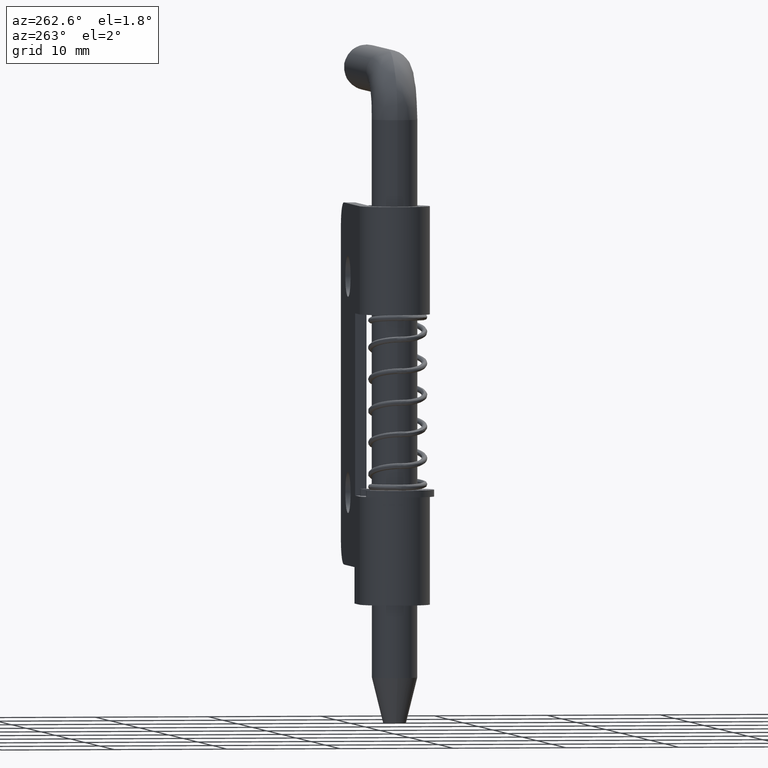
[diagram: clean part render]
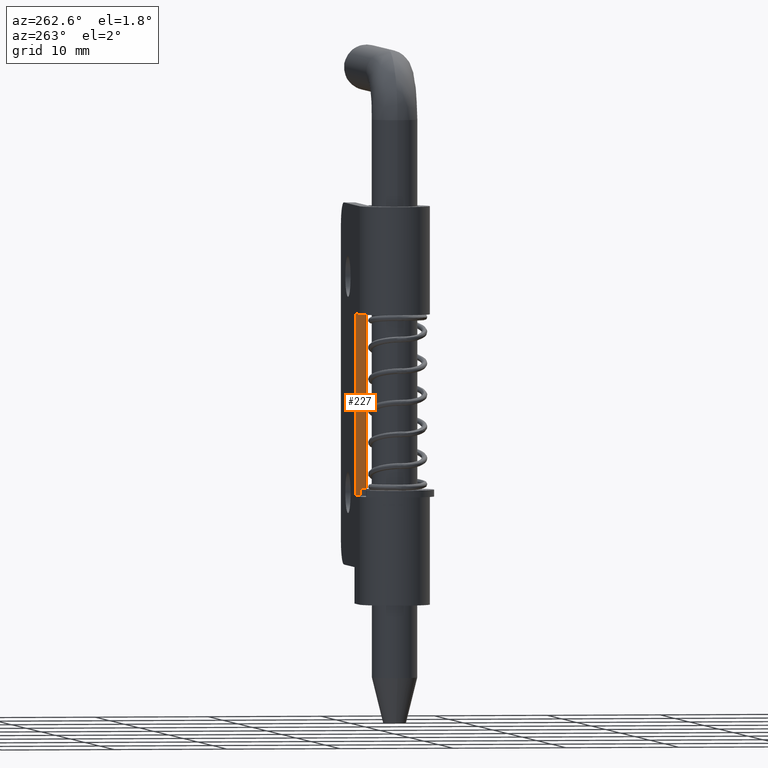
[diagram: same view with one face highlighted and labeled with its STEP entity id]
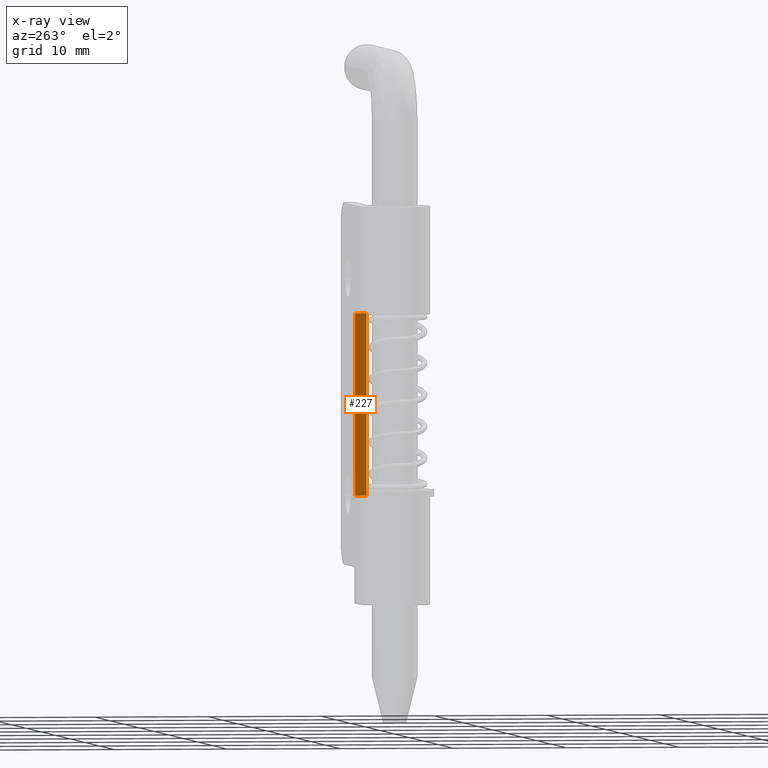
[diagram: x-ray of the same camera — body ghosted, the highlighted face saturated]
A machine part, auxiliary view. The second image highlights one B-rep face of the part: STEP entity #227.
The next image is the same camera in x-ray: the body ghosted, the highlighted face saturated — about 0% of this face is hidden behind the body in this view.
In plain terms, the highlighted planar face has unit normal (1, 0, 0).
Its self-contained STEP definition (entity closure, byte-faithful):
#227=ADVANCED_FACE('',(#1022),#1021,.F.);
#1021=PLANE('',#3051);
#1022=FACE_OUTER_BOUND('',#3052,.T.);
#3048=CARTESIAN_POINT('',(3.00000000003E+00,1.99999999995E+00,-2.71000000000E+01));
#3049=DIRECTION('',(1.00000000000E+00,6.89118900832E-13,-0.00000000000E+00));
#3050=DIRECTION('',(-6.89118900832E-13,1.00000000000E+00,0.00000000000E+00));
#3051=AXIS2_PLACEMENT_3D('',#3048,#3049,#3050);
#3052=EDGE_LOOP('',(#3493,#3494,#3495,#3496));
#3493=ORIENTED_EDGE('',*,*,#3743,.T.);
#3494=ORIENTED_EDGE('',*,*,#3700,.F.);
#3495=ORIENTED_EDGE('',*,*,#3745,.F.);
#3496=ORIENTED_EDGE('',*,*,#3716,.T.);
#3700=EDGE_CURVE('',#4852,#4859,#4860,.T.);
#3716=EDGE_CURVE('',#4971,#4964,#4972,.T.);
#3743=EDGE_CURVE('',#4964,#4859,#5149,.T.);
#3745=EDGE_CURVE('',#4971,#4852,#5161,.T.);
#4852=VERTEX_POINT('',#6129);
#4859=VERTEX_POINT('',#6133);
#4860=LINE('',#6134,#6135);
#4964=VERTEX_POINT('',#6198);
#4971=VERTEX_POINT('',#6202);
#4972=LINE('',#6203,#6204);
#5149=LINE('',#6310,#6311);
#5161=LINE('',#6317,#6318);
#6129=CARTESIAN_POINT('',(3.00000000003E+00,2.09999999995E+00,-9.50000000000E+00));
#6133=CARTESIAN_POINT('',(3.00000000003E+00,2.09999999995E+00,-2.55000000000E+01));
#6134=CARTESIAN_POINT('',(3.00000000003E+00,2.09999999995E+00,-9.50000000000E+00));
#6135=VECTOR('',#6136,1.60000000000E+01);
#6136=DIRECTION('',(0.00000000000E+00,0.00000000000E+00,-1.00000000000E+00));
#6198=CARTESIAN_POINT('',(3.00000000003E+00,3.09999999995E+00,-2.55000000000E+01));
#6202=CARTESIAN_POINT('',(3.00000000003E+00,3.09999999995E+00,-9.50000000000E+00));
#6203=CARTESIAN_POINT('',(3.00000000003E+00,3.09999999995E+00,-9.50000000000E+00));
#6204=VECTOR('',#6205,1.60000000000E+01);
#6205=DIRECTION('',(0.00000000000E+00,0.00000000000E+00,-1.00000000000E+00));
#6310=CARTESIAN_POINT('',(3.00000000003E+00,3.09999999995E+00,-2.55000000000E+01));
#6311=VECTOR('',#6312,1.00000000000E+00);
#6312=DIRECTION('',(0.00000000000E+00,-1.00000000000E+00,0.00000000000E+00));
#6317=CARTESIAN_POINT('',(3.00000000003E+00,3.09999999995E+00,-9.50000000000E+00));
#6318=VECTOR('',#6319,1.00000000000E+00);
#6319=DIRECTION('',(0.00000000000E+00,-1.00000000000E+00,0.00000000000E+00));